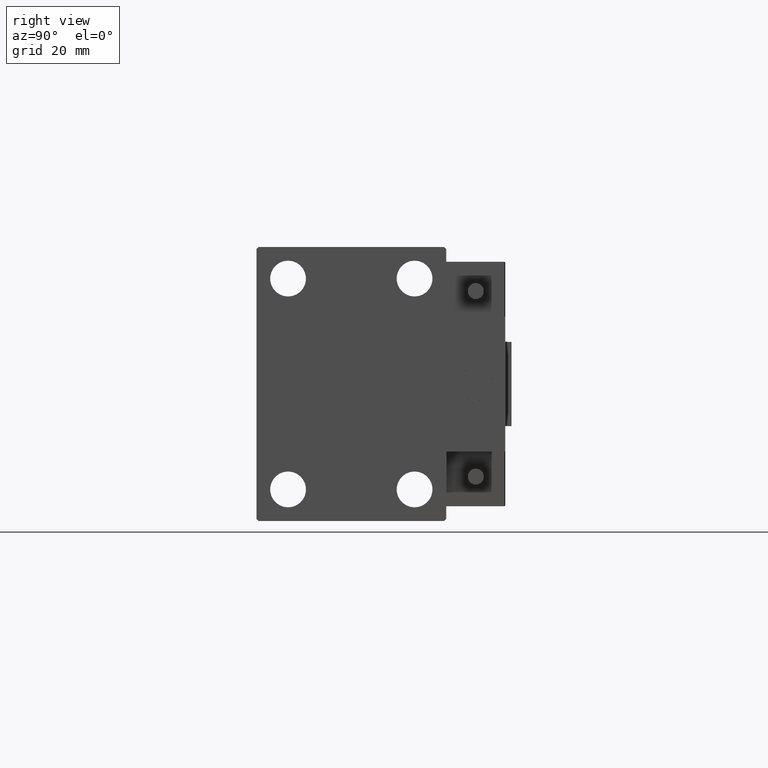
[diagram: clean part render]
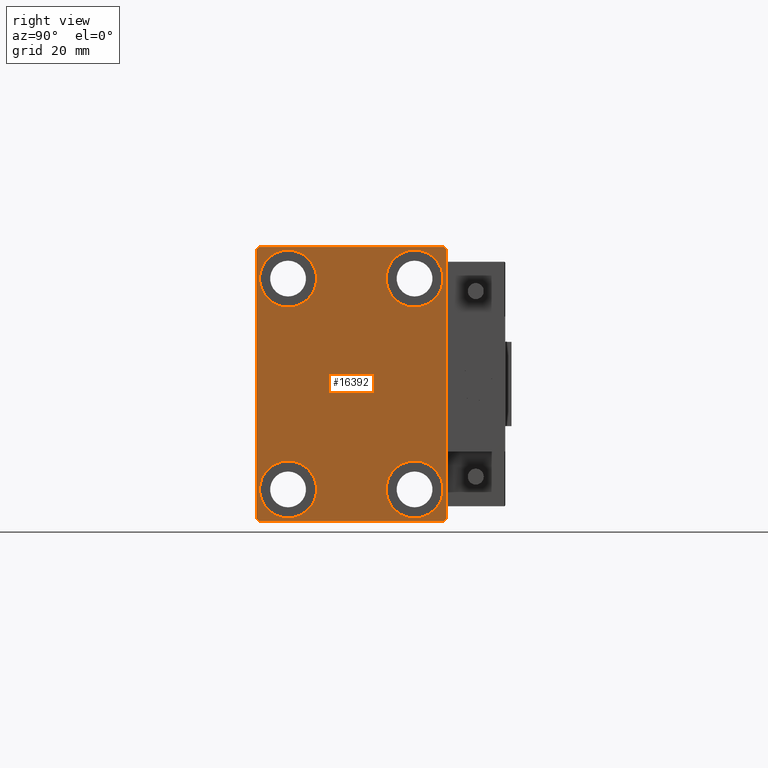
[diagram: same view with one face highlighted and labeled with its STEP entity id]
A machine part, right view. The second image highlights one B-rep face of the part: STEP entity #16392.
In plain terms, the highlighted planar face has unit normal (1, 0, 0).
Its self-contained STEP definition (entity closure, byte-faithful):
#544 = EDGE_CURVE ( 'NONE', #7489, #24273, #19764, .T. ) ;
#978 = DIRECTION ( 'NONE',  ( -1.000000000000000000, -0.000000000000000000, -0.000000000000000000 ) ) ;
#1601 = EDGE_CURVE ( 'NONE', #1918, #5527, #38422, .T. ) ;
#1612 = ORIENTED_EDGE ( 'NONE', *, *, #26436, .T. ) ;
#1918 = VERTEX_POINT ( 'NONE', #14713 ) ;
#1938 = ORIENTED_EDGE ( 'NONE', *, *, #22237, .T. ) ;
#2376 = ORIENTED_EDGE ( 'NONE', *, *, #4411, .T. ) ;
#2411 = CARTESIAN_POINT ( 'NONE',  ( 70.00000000000000000, 0.000000000000000000, 0.000000000000000000 ) ) ;
#2428 = AXIS2_PLACEMENT_3D ( 'NONE', #22373, #30341, #10788 ) ;
#2893 = CARTESIAN_POINT ( 'NONE',  ( 70.00000000000000000, 22.50000000000000000, -32.00000000000002132 ) ) ;
#3160 = CIRCLE ( 'NONE', #45024, 6.749999999999999112 ) ;
#3194 = CARTESIAN_POINT ( 'NONE',  ( 70.00000000000000000, -22.50000000000000711, 32.49999999999999289 ) ) ;
#3461 = DIRECTION ( 'NONE',  ( -1.000000000000000000, -0.000000000000000000, -0.000000000000000000 ) ) ;
#4020 = CARTESIAN_POINT ( 'NONE',  ( 70.00000000000000000, 15.00000000000000355, 25.00000000000000000 ) ) ;
#4157 = VERTEX_POINT ( 'NONE', #25638 ) ;
#4387 = CARTESIAN_POINT ( 'NONE',  ( 70.00000000000000000, -15.00000000000000355, -25.00000000000000000 ) ) ;
#4411 = EDGE_CURVE ( 'NONE', #24827, #7489, #17771, .T. ) ;
#4937 = CIRCLE ( 'NONE', #2428, 6.749999999999999112 ) ;
#5374 = AXIS2_PLACEMENT_3D ( 'NONE', #45538, #26296, #5970 ) ;
#5527 = VERTEX_POINT ( 'NONE', #26842 ) ;
#5649 = AXIS2_PLACEMENT_3D ( 'NONE', #2411, #29674, #26337 ) ;
#5683 = LINE ( 'NONE', #48066, #26690 ) ;
#5970 = DIRECTION ( 'NONE',  ( 0.000000000000000000, 0.000000000000000000, 1.000000000000000000 ) ) ;
#7489 = VERTEX_POINT ( 'NONE', #2893 ) ;
#8042 = ORIENTED_EDGE ( 'NONE', *, *, #17531, .T. ) ;
#8809 = AXIS2_PLACEMENT_3D ( 'NONE', #36207, #978, #16654 ) ;
#9179 = PLANE ( 'NONE',  #5649 ) ;
#9730 = CARTESIAN_POINT ( 'NONE',  ( 70.00000000000000000, 27.25000000000014921, 27.24999999999976907 ) ) ;
#9796 = CARTESIAN_POINT ( 'NONE',  ( 70.00000000000000000, 14.99999999999999645, -18.25000000000000355 ) ) ;
#10645 = ORIENTED_EDGE ( 'NONE', *, *, #40871, .T. ) ;
#10788 = DIRECTION ( 'NONE',  ( 0.000000000000000000, 0.000000000000000000, 1.000000000000000000 ) ) ;
#10851 = ORIENTED_EDGE ( 'NONE', *, *, #50571, .T. ) ;
#11141 = CARTESIAN_POINT ( 'NONE',  ( 70.00000000000000000, -15.00000000000000355, -25.00000000000000000 ) ) ;
#11496 = DIRECTION ( 'NONE',  ( 0.000000000000000000, 1.000000000000000000, 0.000000000000000000 ) ) ;
#11790 = CARTESIAN_POINT ( 'NONE',  ( 70.00000000000000000, 22.50000000000000000, -32.50000000000000711 ) ) ;
#12181 = ORIENTED_EDGE ( 'NONE', *, *, #44234, .T. ) ;
#12714 = VECTOR ( 'NONE', #13166, 1000.000000000000114 ) ;
#13166 = DIRECTION ( 'NONE',  ( -0.000000000000000000, 0.7071067811865376918, 0.7071067811865573427 ) ) ;
#13594 = LINE ( 'NONE', #9730, #30361 ) ;
#13618 = CARTESIAN_POINT ( 'NONE',  ( 70.00000000000000000, -21.99999999999999289, 32.49999999999999289 ) ) ;
#14096 = EDGE_CURVE ( 'NONE', #26286, #43650, #40009, .T. ) ;
#14699 = CARTESIAN_POINT ( 'NONE',  ( 70.00000000000000000, -27.25000000000032330, -27.24999999999957012 ) ) ;
#14713 = CARTESIAN_POINT ( 'NONE',  ( 70.00000000000000000, -22.50000000000000711, 31.99999999999999289 ) ) ;
#15039 = CARTESIAN_POINT ( 'NONE',  ( 70.00000000000000000, 14.99999999999999645, -25.00000000000000000 ) ) ;
#15093 = LINE ( 'NONE', #26178, #31620 ) ;
#15521 = DIRECTION ( 'NONE',  ( -1.000000000000000000, -0.000000000000000000, -0.000000000000000000 ) ) ;
#15604 = DIRECTION ( 'NONE',  ( -1.000000000000000000, -0.000000000000000000, -0.000000000000000000 ) ) ;
#15876 = VECTOR ( 'NONE', #46723, 1000.000000000000000 ) ;
#16392 = ADVANCED_FACE ( 'NONE', ( #49396, #44134, #18349, #41983, #44392 ), #9179, .T. ) ;
#16422 = AXIS2_PLACEMENT_3D ( 'NONE', #4387, #16713, #44195 ) ;
#16654 = DIRECTION ( 'NONE',  ( 0.000000000000000000, 0.000000000000000000, 1.000000000000000000 ) ) ;
#16713 = DIRECTION ( 'NONE',  ( -1.000000000000000000, -0.000000000000000000, -0.000000000000000000 ) ) ;
#17057 = EDGE_LOOP ( 'NONE', ( #41070, #1938 ) ) ;
#17339 = AXIS2_PLACEMENT_3D ( 'NONE', #11141, #15521, #31210 ) ;
#17531 = EDGE_CURVE ( 'NONE', #18260, #45913, #39239, .T. ) ;
#17771 = LINE ( 'NONE', #49077, #12714 ) ;
#18260 = VERTEX_POINT ( 'NONE', #32458 ) ;
#18349 = FACE_BOUND ( 'NONE', #17057, .T. ) ;
#18678 = EDGE_CURVE ( 'NONE', #24273, #18260, #13594, .T. ) ;
#19118 = EDGE_LOOP ( 'NONE', ( #30447, #20413 ) ) ;
#19400 = DIRECTION ( 'NONE',  ( 0.000000000000000000, 0.000000000000000000, -1.000000000000000000 ) ) ;
#19518 = DIRECTION ( 'NONE',  ( -1.000000000000000000, -0.000000000000000000, -0.000000000000000000 ) ) ;
#19707 = CARTESIAN_POINT ( 'NONE',  ( 70.00000000000000000, 22.49999999999999289, 32.50000000000000000 ) ) ;
#19764 = LINE ( 'NONE', #11790, #15876 ) ;
#20269 = CARTESIAN_POINT ( 'NONE',  ( 70.00000000000000000, -14.99999999999999645, 25.00000000000000000 ) ) ;
#20326 = VERTEX_POINT ( 'NONE', #34554 ) ;
#20413 = ORIENTED_EDGE ( 'NONE', *, *, #26899, .T. ) ;
#20729 = EDGE_CURVE ( 'NONE', #33291, #49176, #37769, .T. ) ;
#22237 = EDGE_CURVE ( 'NONE', #43650, #26286, #33250, .T. ) ;
#22373 = CARTESIAN_POINT ( 'NONE',  ( 70.00000000000000000, 14.99999999999999645, -25.00000000000000000 ) ) ;
#22891 = EDGE_CURVE ( 'NONE', #47037, #24827, #15093, .T. ) ;
#23299 = EDGE_CURVE ( 'NONE', #41254, #20326, #43108, .T. ) ;
#24273 = VERTEX_POINT ( 'NONE', #25917 ) ;
#24653 = DIRECTION ( 'NONE',  ( 0.000000000000000000, 0.000000000000000000, 1.000000000000000000 ) ) ;
#24827 = VERTEX_POINT ( 'NONE', #34836 ) ;
#25153 = ORIENTED_EDGE ( 'NONE', *, *, #544, .T. ) ;
#25638 = CARTESIAN_POINT ( 'NONE',  ( 70.00000000000000000, 14.99999999999999645, -31.75000000000000000 ) ) ;
#25917 = CARTESIAN_POINT ( 'NONE',  ( 70.00000000000000000, 22.49999999999999289, 31.99999999999999289 ) ) ;
#26178 = CARTESIAN_POINT ( 'NONE',  ( 70.00000000000000000, -22.50000000000000711, -32.50000000000000711 ) ) ;
#26286 = VERTEX_POINT ( 'NONE', #37615 ) ;
#26296 = DIRECTION ( 'NONE',  ( -1.000000000000000000, -0.000000000000000000, -0.000000000000000000 ) ) ;
#26337 = DIRECTION ( 'NONE',  ( 0.000000000000000000, 0.000000000000000000, -1.000000000000000000 ) ) ;
#26378 = CIRCLE ( 'NONE', #17339, 6.749999999999999112 ) ;
#26436 = EDGE_CURVE ( 'NONE', #45913, #1918, #5683, .T. ) ;
#26690 = VECTOR ( 'NONE', #32449, 1000.000000000000114 ) ;
#26842 = CARTESIAN_POINT ( 'NONE',  ( 70.00000000000000000, -22.50000000000000711, -32.00000000000000711 ) ) ;
#26899 = EDGE_CURVE ( 'NONE', #20326, #41254, #37347, .T. ) ;
#27904 = EDGE_LOOP ( 'NONE', ( #10645, #41825 ) ) ;
#27943 = DIRECTION ( 'NONE',  ( 0.000000000000000000, 0.000000000000000000, 1.000000000000000000 ) ) ;
#28198 = CARTESIAN_POINT ( 'NONE',  ( 70.00000000000000000, -14.99999999999999645, 18.25000000000000355 ) ) ;
#29674 = DIRECTION ( 'NONE',  ( 1.000000000000000000, 0.000000000000000000, 0.000000000000000000 ) ) ;
#30269 = EDGE_LOOP ( 'NONE', ( #42271, #12181 ) ) ;
#30341 = DIRECTION ( 'NONE',  ( -1.000000000000000000, -0.000000000000000000, -0.000000000000000000 ) ) ;
#30361 = VECTOR ( 'NONE', #40336, 999.9999999999998863 ) ;
#30447 = ORIENTED_EDGE ( 'NONE', *, *, #23299, .T. ) ;
#31210 = DIRECTION ( 'NONE',  ( 0.000000000000000000, 0.000000000000000000, 1.000000000000000000 ) ) ;
#31620 = VECTOR ( 'NONE', #11496, 1000.000000000000000 ) ;
#32449 = DIRECTION ( 'NONE',  ( 0.000000000000000000, -0.7071067811865474617, -0.7071067811865474617 ) ) ;
#32458 = CARTESIAN_POINT ( 'NONE',  ( 70.00000000000000000, 21.99999999999999289, 32.50000000000000000 ) ) ;
#33001 = ORIENTED_EDGE ( 'NONE', *, *, #18678, .T. ) ;
#33042 = CARTESIAN_POINT ( 'NONE',  ( 70.00000000000000000, -15.00000000000000355, -18.25000000000000355 ) ) ;
#33250 = CIRCLE ( 'NONE', #38974, 6.749999999999999112 ) ;
#33291 = VERTEX_POINT ( 'NONE', #44470 ) ;
#34554 = CARTESIAN_POINT ( 'NONE',  ( 70.00000000000000000, -14.99999999999999645, 31.75000000000000000 ) ) ;
#34836 = CARTESIAN_POINT ( 'NONE',  ( 70.00000000000000000, 22.00000000000001421, -32.50000000000000711 ) ) ;
#35401 = DIRECTION ( 'NONE',  ( 0.000000000000000000, -1.000000000000000000, -1.541976423090495387E-16 ) ) ;
#35754 = AXIS2_PLACEMENT_3D ( 'NONE', #20269, #19518, #24653 ) ;
#36207 = CARTESIAN_POINT ( 'NONE',  ( 70.00000000000000000, 15.00000000000000355, 25.00000000000000000 ) ) ;
#36253 = CARTESIAN_POINT ( 'NONE',  ( 70.00000000000000000, 15.00000000000000355, 31.75000000000000000 ) ) ;
#36363 = EDGE_LOOP ( 'NONE', ( #8042, #1612, #39945, #10851, #47906, #2376, #25153, #33001 ) ) ;
#37347 = CIRCLE ( 'NONE', #5374, 6.749999999999999112 ) ;
#37615 = CARTESIAN_POINT ( 'NONE',  ( 70.00000000000000000, 15.00000000000000355, 18.25000000000000355 ) ) ;
#37769 = CIRCLE ( 'NONE', #16422, 6.749999999999999112 ) ;
#38032 = EDGE_CURVE ( 'NONE', #39307, #4157, #3160, .T. ) ;
#38422 = LINE ( 'NONE', #3194, #47069 ) ;
#38768 = VECTOR ( 'NONE', #41437, 1000.000000000000000 ) ;
#38974 = AXIS2_PLACEMENT_3D ( 'NONE', #4020, #15604, #27943 ) ;
#39239 = LINE ( 'NONE', #19707, #47496 ) ;
#39307 = VERTEX_POINT ( 'NONE', #9796 ) ;
#39945 = ORIENTED_EDGE ( 'NONE', *, *, #1601, .T. ) ;
#40009 = CIRCLE ( 'NONE', #8809, 6.749999999999999112 ) ;
#40148 = DIRECTION ( 'NONE',  ( 0.000000000000000000, 0.000000000000000000, 1.000000000000000000 ) ) ;
#40336 = DIRECTION ( 'NONE',  ( -0.000000000000000000, -0.7071067811865425767, 0.7071067811865525687 ) ) ;
#40871 = EDGE_CURVE ( 'NONE', #4157, #39307, #4937, .T. ) ;
#41070 = ORIENTED_EDGE ( 'NONE', *, *, #14096, .T. ) ;
#41254 = VERTEX_POINT ( 'NONE', #28198 ) ;
#41437 = DIRECTION ( 'NONE',  ( -0.000000000000000000, 0.7071067811865378028, -0.7071067811865573427 ) ) ;
#41825 = ORIENTED_EDGE ( 'NONE', *, *, #38032, .T. ) ;
#41983 = FACE_BOUND ( 'NONE', #30269, .T. ) ;
#42195 = LINE ( 'NONE', #14699, #38768 ) ;
#42271 = ORIENTED_EDGE ( 'NONE', *, *, #20729, .T. ) ;
#43108 = CIRCLE ( 'NONE', #35754, 6.749999999999999112 ) ;
#43650 = VERTEX_POINT ( 'NONE', #36253 ) ;
#44134 = FACE_BOUND ( 'NONE', #19118, .T. ) ;
#44195 = DIRECTION ( 'NONE',  ( 0.000000000000000000, 0.000000000000000000, 1.000000000000000000 ) ) ;
#44234 = EDGE_CURVE ( 'NONE', #49176, #33291, #26378, .T. ) ;
#44392 = FACE_OUTER_BOUND ( 'NONE', #36363, .T. ) ;
#44470 = CARTESIAN_POINT ( 'NONE',  ( 70.00000000000000000, -15.00000000000000355, -31.75000000000000000 ) ) ;
#45024 = AXIS2_PLACEMENT_3D ( 'NONE', #15039, #3461, #40148 ) ;
#45538 = CARTESIAN_POINT ( 'NONE',  ( 70.00000000000000000, -14.99999999999999645, 25.00000000000000000 ) ) ;
#45913 = VERTEX_POINT ( 'NONE', #13618 ) ;
#46723 = DIRECTION ( 'NONE',  ( 0.000000000000000000, -1.067522139062650425E-16, 1.000000000000000000 ) ) ;
#47037 = VERTEX_POINT ( 'NONE', #48466 ) ;
#47069 = VECTOR ( 'NONE', #19400, 1000.000000000000000 ) ;
#47496 = VECTOR ( 'NONE', #35401, 1000.000000000000000 ) ;
#47906 = ORIENTED_EDGE ( 'NONE', *, *, #22891, .T. ) ;
#48066 = CARTESIAN_POINT ( 'NONE',  ( 70.00000000000000000, -27.25000000000000000, 27.25000000000000000 ) ) ;
#48466 = CARTESIAN_POINT ( 'NONE',  ( 70.00000000000000000, -22.00000000000002132, -32.50000000000000711 ) ) ;
#49077 = CARTESIAN_POINT ( 'NONE',  ( 70.00000000000000000, 27.25000000000032685, -27.24999999999957012 ) ) ;
#49176 = VERTEX_POINT ( 'NONE', #33042 ) ;
#49396 = FACE_BOUND ( 'NONE', #27904, .T. ) ;
#50571 = EDGE_CURVE ( 'NONE', #5527, #47037, #42195, .T. ) ;